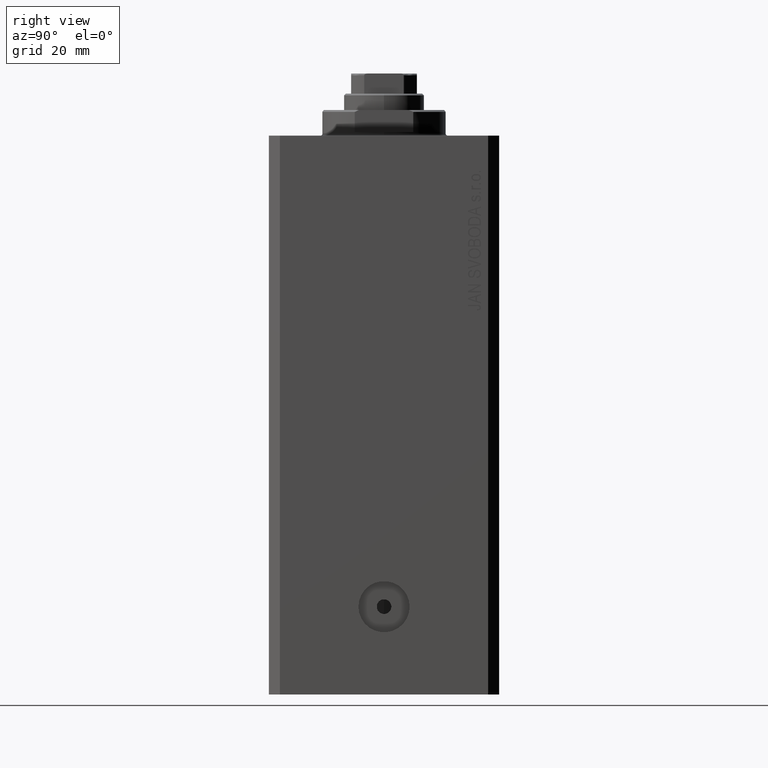
[diagram: clean part render]
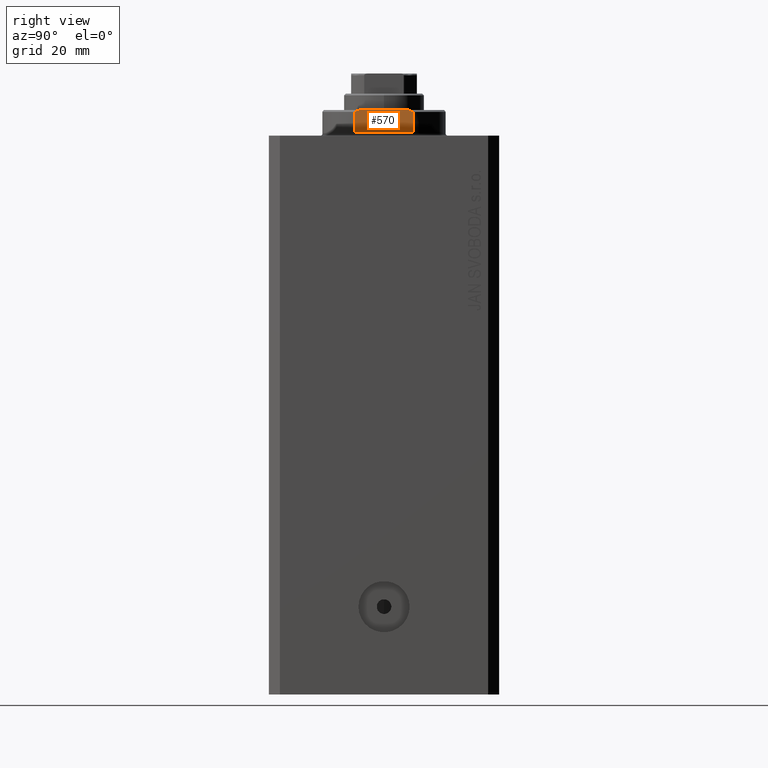
[diagram: same view with one face highlighted and labeled with its STEP entity id]
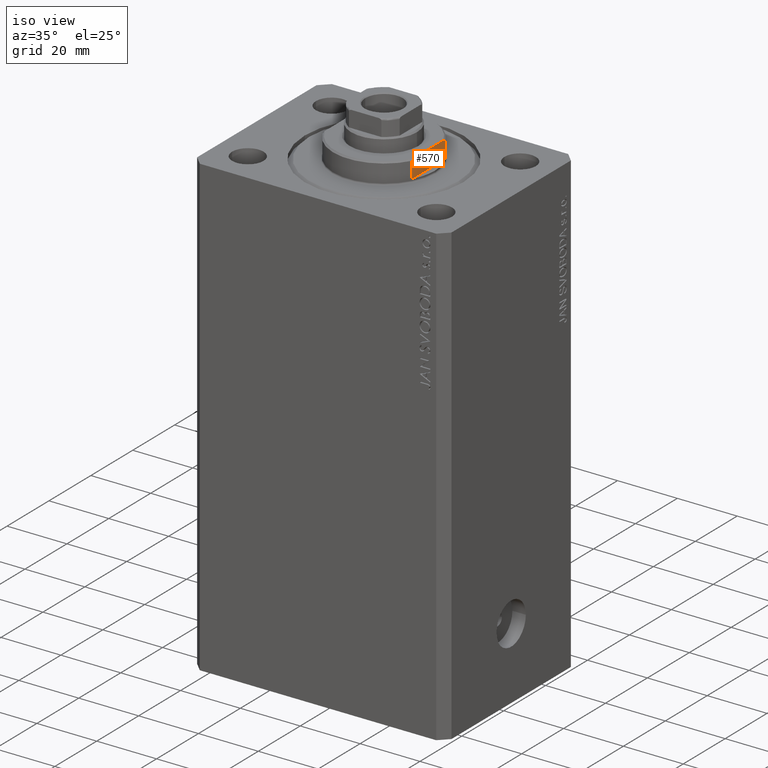
[diagram: same view with one face highlighted and labeled with its STEP entity id]
A machine part, right view. The second image highlights one B-rep face of the part: STEP entity #570.
A second angle (iso view) of the same face is appended — the face is thin or edge-on in the first view.
In plain terms, the highlighted planar face has unit normal (-1, 0, 0).
Its self-contained STEP definition (entity closure, byte-faithful):
#362 = CARTESIAN_POINT ( 'NONE',  ( -14.99999999999999645, -6.873863542433817031, -7.000000000000000000 ) ) ;
#570 = ADVANCED_FACE ( 'NONE', ( #43984 ), #30679, .F. ) ;
#1315 = CARTESIAN_POINT ( 'NONE',  ( -14.99999999999999645, -8.000000000000003553, -1.000000000000000000 ) ) ;
#3675 = VECTOR ( 'NONE', #44310, 1000.000000000000000 ) ;
#3813 = B_SPLINE_CURVE_WITH_KNOTS ( 'NONE', 3,
 ( #362, #16823, #21113, #31254 ),
 .UNSPECIFIED., .F., .F.,
 ( 4, 4 ),
 ( 0.04875332532859021767, 0.04998905627745620778 ),
 .UNSPECIFIED. ) ;
#5068 = VERTEX_POINT ( 'NONE', #9841 ) ;
#5754 = CARTESIAN_POINT ( 'NONE',  ( -15.00000000000000000, 7.628315461082496363, -6.674910371255315056 ) ) ;
#6548 = DIRECTION ( 'NONE',  ( 0.000000000000000000, 0.000000000000000000, -1.000000000000000000 ) ) ;
#7237 = CARTESIAN_POINT ( 'NONE',  ( -14.99999999999999645, -6.873863542433817031, -7.000000000000000000 ) ) ;
#7657 = ORIENTED_EDGE ( 'NONE', *, *, #10166, .T. ) ;
#8134 = CARTESIAN_POINT ( 'NONE',  ( -15.00000000000000000, -42.42640687119285303, -7.000000000000000000 ) ) ;
#9362 = CARTESIAN_POINT ( 'NONE',  ( -15.00000000000000000, 8.000000000000001776, -6.500000000000013323 ) ) ;
#9706 = DIRECTION ( 'NONE',  ( 1.000000000000000000, 0.000000000000000000, 0.000000000000000000 ) ) ;
#9841 = CARTESIAN_POINT ( 'NONE',  ( -15.00000000000000000, 8.000000000000001776, -6.500000000000013323 ) ) ;
#10166 = EDGE_CURVE ( 'NONE', #18357, #30274, #25050, .T. ) ;
#11697 = VERTEX_POINT ( 'NONE', #1315 ) ;
#12272 = EDGE_CURVE ( 'NONE', #5068, #18357, #39386, .T. ) ;
#12273 = VECTOR ( 'NONE', #17949, 1000.000000000000000 ) ;
#12642 = CARTESIAN_POINT ( 'NONE',  ( -15.00000000000000000, -42.42640687119285303, -1.000000000000000000 ) ) ;
#13185 = ORIENTED_EDGE ( 'NONE', *, *, #12272, .T. ) ;
#14113 = LINE ( 'NONE', #35089, #12273 ) ;
#15065 = LINE ( 'NONE', #36702, #26774 ) ;
#16516 = EDGE_LOOP ( 'NONE', ( #13185, #7657, #36252, #18008, #20132, #43921 ) ) ;
#16823 = CARTESIAN_POINT ( 'NONE',  ( -15.00000000000000000, -7.254193676168162241, -6.841555306644511170 ) ) ;
#17949 = DIRECTION ( 'NONE',  ( -0.000000000000000000, -0.000000000000000000, 1.000000000000000000 ) ) ;
#18008 = ORIENTED_EDGE ( 'NONE', *, *, #42843, .F. ) ;
#18357 = VERTEX_POINT ( 'NONE', #31665 ) ;
#18519 = VERTEX_POINT ( 'NONE', #33875 ) ;
#20109 = EDGE_CURVE ( 'NONE', #5068, #18519, #14113, .T. ) ;
#20132 = ORIENTED_EDGE ( 'NONE', *, *, #40532, .F. ) ;
#21113 = CARTESIAN_POINT ( 'NONE',  ( -15.00000000000000000, -7.629305121525828071, -6.674444648693746984 ) ) ;
#23811 = LINE ( 'NONE', #41841, #3675 ) ;
#23877 = VECTOR ( 'NONE', #35856, 1000.000000000000000 ) ;
#25050 = LINE ( 'NONE', #8134, #23877 ) ;
#26774 = VECTOR ( 'NONE', #40082, 1000.000000000000000 ) ;
#29665 = CARTESIAN_POINT ( 'NONE',  ( -15.00000000000000000, 7.253126193285960532, -6.842000017654668476 ) ) ;
#30274 = VERTEX_POINT ( 'NONE', #7237 ) ;
#30679 = PLANE ( 'NONE',  #31945 ) ;
#31254 = CARTESIAN_POINT ( 'NONE',  ( -15.00000000000000000, -8.000000000000001776, -6.500000000000014211 ) ) ;
#31665 = CARTESIAN_POINT ( 'NONE',  ( -14.99999999999999645, 6.873863542433817031, -7.000000000000000000 ) ) ;
#31916 = CARTESIAN_POINT ( 'NONE',  ( -15.00000000000000000, -8.000000000000001776, -6.500000000000014211 ) ) ;
#31945 = AXIS2_PLACEMENT_3D ( 'NONE', #12642, #9706, #6548 ) ;
#33875 = CARTESIAN_POINT ( 'NONE',  ( -14.99999999999999645, 8.000000000000003553, -1.000000000000000000 ) ) ;
#35089 = CARTESIAN_POINT ( 'NONE',  ( -15.00000000000000000, 8.000000000000001776, -7.000000000000000000 ) ) ;
#35856 = DIRECTION ( 'NONE',  ( -0.000000000000000000, -1.000000000000000000, -0.000000000000000000 ) ) ;
#36252 = ORIENTED_EDGE ( 'NONE', *, *, #40482, .T. ) ;
#36702 = CARTESIAN_POINT ( 'NONE',  ( -15.00000000000000000, -8.000000000000001776, -7.000000000000000000 ) ) ;
#39386 = B_SPLINE_CURVE_WITH_KNOTS ( 'NONE', 3,
 ( #9362, #5754, #29665, #43411 ),
 .UNSPECIFIED., .F., .F.,
 ( 4, 4 ),
 ( 0.03336039268696996268, 0.03459498301323797598 ),
 .UNSPECIFIED. ) ;
#39777 = VERTEX_POINT ( 'NONE', #31916 ) ;
#40082 = DIRECTION ( 'NONE',  ( 0.000000000000000000, 0.000000000000000000, -1.000000000000000000 ) ) ;
#40482 = EDGE_CURVE ( 'NONE', #30274, #39777, #3813, .T. ) ;
#40532 = EDGE_CURVE ( 'NONE', #18519, #11697, #23811, .T. ) ;
#41841 = CARTESIAN_POINT ( 'NONE',  ( -15.00000000000000000, -42.42640687119285303, -1.000000000000000000 ) ) ;
#42843 = EDGE_CURVE ( 'NONE', #11697, #39777, #15065, .T. ) ;
#43411 = CARTESIAN_POINT ( 'NONE',  ( -14.99999999999999645, 6.873863542433817031, -7.000000000000000000 ) ) ;
#43921 = ORIENTED_EDGE ( 'NONE', *, *, #20109, .F. ) ;
#43984 = FACE_OUTER_BOUND ( 'NONE', #16516, .T. ) ;
#44310 = DIRECTION ( 'NONE',  ( -0.000000000000000000, -1.000000000000000000, -0.000000000000000000 ) ) ;